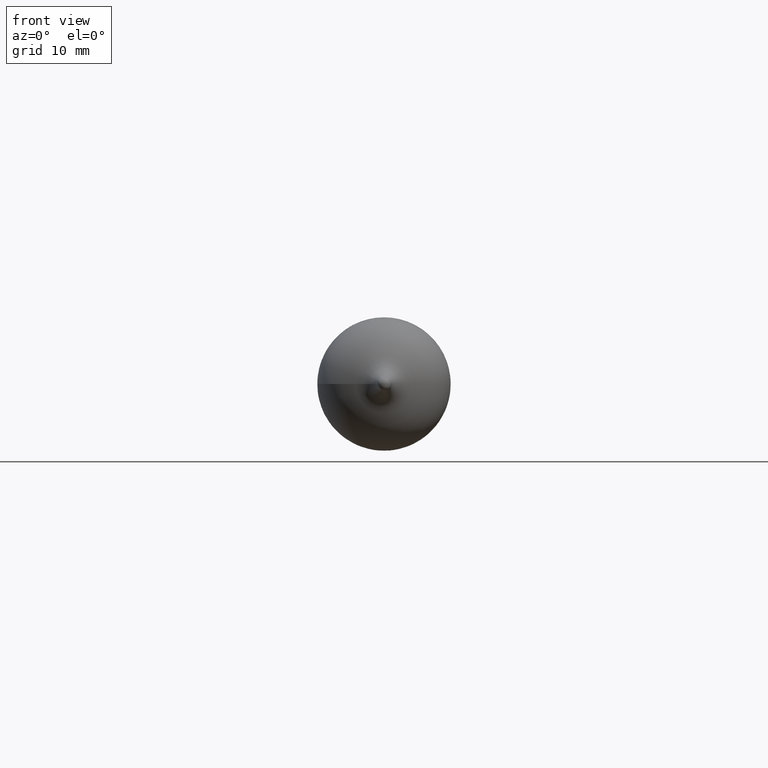
[diagram: clean part render]
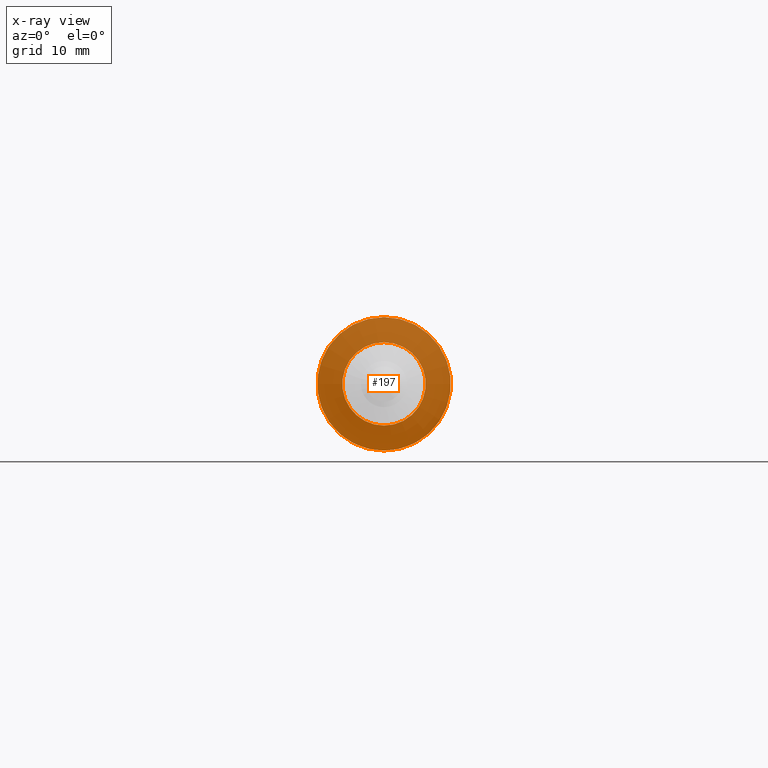
[diagram: x-ray — body ghosted, one internal face saturated and labeled with its STEP entity id]
A machine part, front view, then the same camera in x-ray: the body is ghosted and one INTERNAL B-rep face — a face not visible from any outside direction — is saturated and labeled: STEP entity #197.
In plain terms, the highlighted planar face has unit normal (0, 1, 0).
Its self-contained STEP definition (entity closure, byte-faithful):
#11 = VERTEX_POINT ( 'NONE', #11127 ) ;
#197 = ADVANCED_FACE ( 'NONE', ( #2680, #5567 ), #6252, .T. ) ;
#240 = DIRECTION ( 'NONE',  ( 0.000000000000000000, 0.000000000000000000, 1.000000000000000000 ) ) ;
#404 = EDGE_CURVE ( 'NONE', #11, #11, #9317, .T. ) ;
#495 = AXIS2_PLACEMENT_3D ( 'NONE', #9039, #11793, #4558 ) ;
#559 = AXIS2_PLACEMENT_3D ( 'NONE', #10575, #11453, #5005 ) ;
#2016 = DIRECTION ( 'NONE',  ( 0.000000000000000000, 1.000000000000000000, 0.000000000000000000 ) ) ;
#2680 = FACE_OUTER_BOUND ( 'NONE', #6271, .T. ) ;
#3206 = CIRCLE ( 'NONE', #559, 10.00000000000000000 ) ;
#3411 = EDGE_CURVE ( 'NONE', #10414, #10414, #3206, .T. ) ;
#4558 = DIRECTION ( 'NONE',  ( 0.000000000000000000, -0.000000000000000000, 1.000000000000000000 ) ) ;
#5005 = DIRECTION ( 'NONE',  ( 0.000000000000000000, 0.000000000000000000, 1.000000000000000000 ) ) ;
#5567 = FACE_BOUND ( 'NONE', #11717, .T. ) ;
#5834 = ORIENTED_EDGE ( 'NONE', *, *, #3411, .T. ) ;
#6252 = PLANE ( 'NONE',  #495 ) ;
#6271 = EDGE_LOOP ( 'NONE', ( #5834 ) ) ;
#8495 = CARTESIAN_POINT ( 'NONE',  ( 0.000000000000000000, 1.000000000000000000, 0.000000000000000000 ) ) ;
#9039 = CARTESIAN_POINT ( 'NONE',  ( 0.000000000000000000, 1.000000000000000000, 0.000000000000000000 ) ) ;
#9299 = CARTESIAN_POINT ( 'NONE',  ( 0.000000000000000000, 1.000000000000000000, 10.00000000000000000 ) ) ;
#9317 = CIRCLE ( 'NONE', #11247, 6.250000000000000000 ) ;
#10414 = VERTEX_POINT ( 'NONE', #9299 ) ;
#10575 = CARTESIAN_POINT ( 'NONE',  ( 0.000000000000000000, 1.000000000000000000, 0.000000000000000000 ) ) ;
#10771 = ORIENTED_EDGE ( 'NONE', *, *, #404, .F. ) ;
#11127 = CARTESIAN_POINT ( 'NONE',  ( 0.000000000000000000, 1.000000000000000000, 6.250000000000000000 ) ) ;
#11247 = AXIS2_PLACEMENT_3D ( 'NONE', #8495, #2016, #240 ) ;
#11453 = DIRECTION ( 'NONE',  ( 0.000000000000000000, 1.000000000000000000, 0.000000000000000000 ) ) ;
#11717 = EDGE_LOOP ( 'NONE', ( #10771 ) ) ;
#11793 = DIRECTION ( 'NONE',  ( 0.000000000000000000, 1.000000000000000000, 0.000000000000000000 ) ) ;